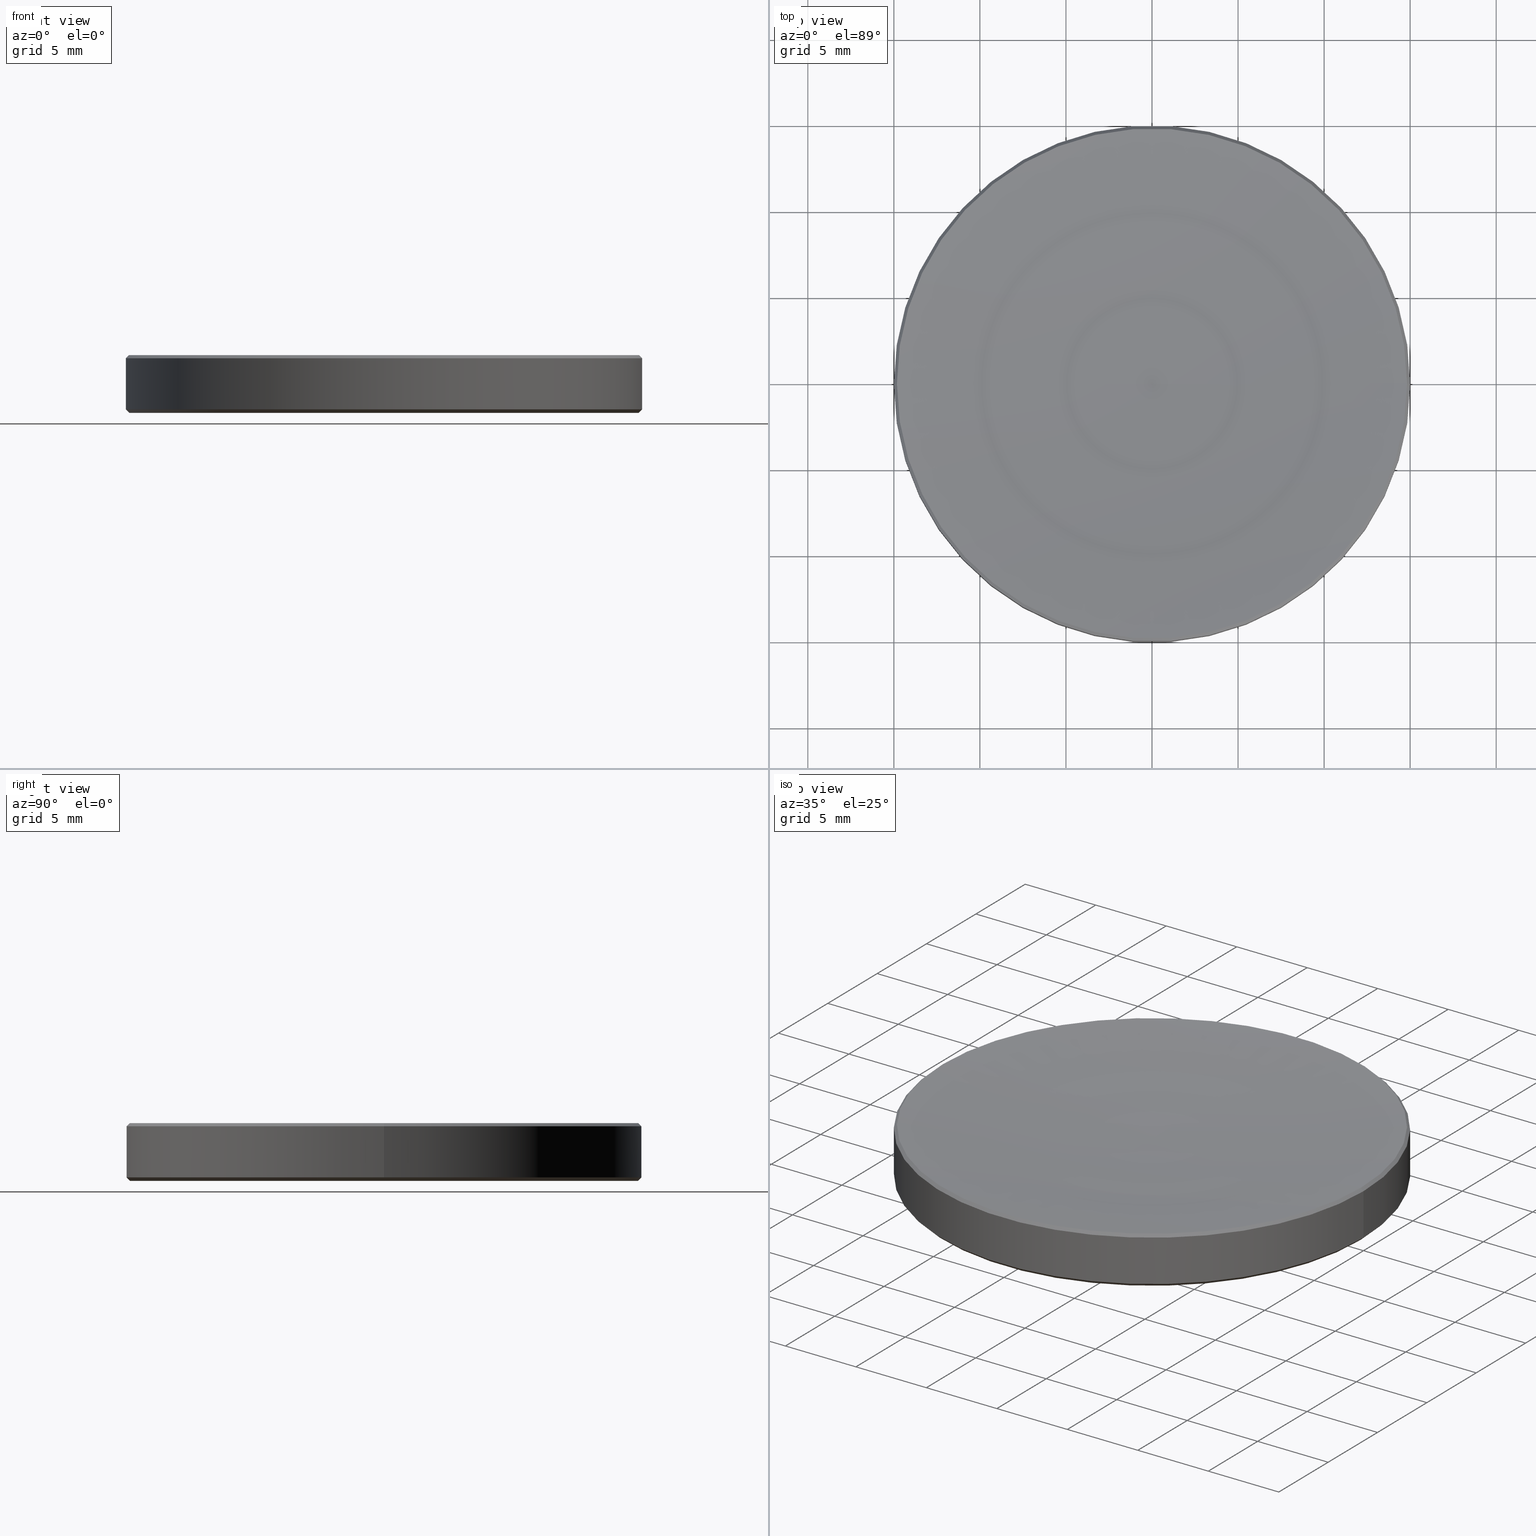
[diagram: canonical four-view strip — front | top / right | iso, engineering-drawing reading convention]
A machine part, canonical four-view strip (front | top / right | iso — engineering-drawing reading convention). The complete STEP part file that produces these views, byte-faithful:
ISO-10303-21;
HEADER;
FILE_DESCRIPTION (( 'STEP AP214' ),
    '1' );
FILE_NAME ('GL13-030-250.STEP',
    '2022-10-25T13:50:00',
    ( '' ),
    ( '' ),
    'SwSTEP 2.0',
    'SolidWorks 2022',
    '' );
FILE_SCHEMA (( 'AUTOMOTIVE_DESIGN' ));
ENDSEC;

DATA;
#1 = EDGE_CURVE ( 'NONE', #127, #71, #107, .T. ) ;
#2 = FACE_OUTER_BOUND ( 'NONE', #28, .T. ) ;
#3 = EDGE_CURVE ( 'NONE', #71, #212, #89, .T. ) ;
#4 = DIRECTION ( 'NONE',  ( 1.000000000000000000, 0.000000000000000000, 0.000000000000000000 ) ) ;
#5 = PRODUCT_CONTEXT ( 'NONE', #254, 'mechanical' ) ;
#6 = ORIENTED_EDGE ( 'NONE', *, *, #203, .T. ) ;
#7 = VECTOR ( 'NONE', #16, 1000.000000000000000 ) ;
#8 = AXIS2_PLACEMENT_3D ( 'NONE', #202, #140, #247 ) ;
#9 = EDGE_LOOP ( 'NONE', ( #216, #170, #211, #82 ) ) ;
#10 = APPLICATION_PROTOCOL_DEFINITION ( 'draft international standard', 'automotive_design', 1998, #186 ) ;
#11 = CARTESIAN_POINT ( 'NONE',  ( 0.000000000000000000, 0.000000000000000000, 2.500000000000000000 ) ) ;
#12 = CARTESIAN_POINT ( 'NONE',  ( -15.00000000000000000, 1.836970198721029589E-15, 0.1999999999999996503 ) ) ;
#13 = DIRECTION ( 'NONE',  ( 1.000000000000000000, 0.000000000000000000, 0.000000000000000000 ) ) ;
#14 = EDGE_CURVE ( 'NONE', #212, #30, #233, .T. ) ;
#15 = FACE_OUTER_BOUND ( 'NONE', #180, .T. ) ;
#16 = DIRECTION ( 'NONE',  ( -0.000000000000000000, -0.000000000000000000, 1.000000000000000000 ) ) ;
#17 = CONICAL_SURFACE ( 'NONE', #160, 15.00000000000000000, 0.7853981633974482790 ) ;
#18 = CARTESIAN_POINT ( 'NONE',  ( 14.82077471085186993, 1.815021431052878250E-15, 3.349225289148161089 ) ) ;
#19 = LINE ( 'NONE', #39, #262 ) ;
#20 = CARTESIAN_POINT ( 'NONE',  ( 0.000000000000000000, 0.000000000000000000, 3.349225289148161089 ) ) ;
#21 = AXIS2_PLACEMENT_3D ( 'NONE', #48, #192, #187 ) ;
#22 = DIRECTION ( 'NONE',  ( 0.000000000000000000, 0.000000000000000000, -1.000000000000000000 ) ) ;
#23 = PRODUCT_DEFINITION ( 'δ֪', '', #257, #57 ) ;
#24 = DIRECTION ( 'NONE',  ( 0.000000000000000000, -0.000000000000000000, 1.000000000000000000 ) ) ;
#25 = AXIS2_PLACEMENT_3D ( 'NONE', #94, #134, #198 ) ;
#26 = AXIS2_PLACEMENT_3D ( 'NONE', #206, #63, #98 ) ;
#27 = EDGE_CURVE ( 'NONE', #33, #106, #215, .T. ) ;
#28 = EDGE_LOOP ( 'NONE', ( #143, #46, #105, #232 ) ) ;
#29 = EDGE_LOOP ( 'NONE', ( #165, #6, #45 ) ) ;
#30 = VERTEX_POINT ( 'NONE', #129 ) ;
#31 = AXIS2_PLACEMENT_3D ( 'NONE', #250, #164, #188 ) ;
#32 = DIRECTION ( 'NONE',  ( 0.000000000000000000, -1.000000000000000000, 0.000000000000000000 ) ) ;
#33 = VERTEX_POINT ( 'NONE', #11 ) ;
#34 = CARTESIAN_POINT ( 'NONE',  ( 0.000000000000000000, 0.000000000000000000, 3.170000000000006146 ) ) ;
#35 = FACE_OUTER_BOUND ( 'NONE', #9, .T. ) ;
#36 = DIRECTION ( 'NONE',  ( 1.000000000000000000, 0.000000000000000000, 0.000000000000000000 ) ) ;
#37 = AXIS2_PLACEMENT_3D ( 'NONE', #256, #238, #74 ) ;
#38 = FACE_OUTER_BOUND ( 'NONE', #168, .T. ) ;
#39 = CARTESIAN_POINT ( 'NONE',  ( 15.00000000000000000, 0.000000000000000000, 2.500000000000000000 ) ) ;
#40 = CARTESIAN_POINT ( 'NONE',  ( 0.000000000000000000, 0.000000000000000000, 9.184850993605147944E-16 ) ) ;
#41 = EDGE_CURVE ( 'NONE', #146, #106, #166, .T. ) ;
#42 = MECHANICAL_DESIGN_GEOMETRIC_PRESENTATION_REPRESENTATION (  '', ( #191 ), #200 ) ;
#43 = PRESENTATION_STYLE_ASSIGNMENT (( #120 ) ) ;
#44 = FILL_AREA_STYLE ('',( #231 ) ) ;
#45 = ORIENTED_EDGE ( 'NONE', *, *, #41, .T. ) ;
#46 = ORIENTED_EDGE ( 'NONE', *, *, #14, .T. ) ;
#47 = ORIENTED_EDGE ( 'NONE', *, *, #49, .F. ) ;
#48 = CARTESIAN_POINT ( 'NONE',  ( 0.000000000000000000, 0.000000000000000000, 9.184850993605147944E-16 ) ) ;
#49 = EDGE_CURVE ( 'NONE', #106, #146, #115, .T. ) ;
#50 = DIRECTION ( 'NONE',  ( 1.000000000000000000, 0.000000000000000000, 0.000000000000000000 ) ) ;
#51 = AXIS2_PLACEMENT_3D ( 'NONE', #34, #219, #220 ) ;
#52 = AXIS2_PLACEMENT_3D ( 'NONE', #101, #22, #245 ) ;
#53 = CARTESIAN_POINT ( 'NONE',  ( 0.000000000000000000, 0.000000000000000000, 3.349225289148161089 ) ) ;
#54 = STYLED_ITEM ( 'NONE', ( #154 ), #79 ) ;
#55 = FACE_OUTER_BOUND ( 'NONE', #29, .T. ) ;
#56 = DIRECTION ( 'NONE',  ( -0.000000000000000000, -0.000000000000000000, 1.000000000000000000 ) ) ;
#57 = PRODUCT_DEFINITION_CONTEXT ( 'detailed design', #186, 'design' ) ;
#58 = DIRECTION ( 'NONE',  ( 1.000000000000000000, 0.000000000000000000, 0.000000000000000000 ) ) ;
#59 = CONICAL_SURFACE ( 'NONE', #205, 15.00000000000000000, 0.7853981633974482790 ) ;
#60 = DIRECTION ( 'NONE',  ( 0.000000000000000000, 0.000000000000000000, -1.000000000000000000 ) ) ;
#61 = DIRECTION ( 'NONE',  ( -0.000000000000000000, -0.000000000000000000, 1.000000000000000000 ) ) ;
#62 = EDGE_CURVE ( 'NONE', #212, #171, #96, .T. ) ;
#63 = DIRECTION ( 'NONE',  ( -0.000000000000000000, -0.000000000000000000, 1.000000000000000000 ) ) ;
#64 = CARTESIAN_POINT ( 'NONE',  ( 0.000000000000000000, 0.000000000000000000, 2.500000000000000000 ) ) ;
#65 =( GEOMETRIC_REPRESENTATION_CONTEXT ( 3 ) GLOBAL_UNCERTAINTY_ASSIGNED_CONTEXT ( ( #225 ) ) GLOBAL_UNIT_ASSIGNED_CONTEXT ( ( #222, #260, #201 ) ) REPRESENTATION_CONTEXT ( 'NONE', 'WORKASPACE' ) );
#66 =( GEOMETRIC_REPRESENTATION_CONTEXT ( 3 ) GLOBAL_UNCERTAINTY_ASSIGNED_CONTEXT ( ( #175 ) ) GLOBAL_UNIT_ASSIGNED_CONTEXT ( ( #99, #248, #183 ) ) REPRESENTATION_CONTEXT ( 'NONE', 'WORKASPACE' ) );
#67 = ORIENTED_EDGE ( 'NONE', *, *, #49, .T. ) ;
#68 = ORIENTED_EDGE ( 'NONE', *, *, #117, .F. ) ;
#69 = ADVANCED_FACE ( 'NONE', ( #15 ), #112, .F. ) ;
#70 = DIRECTION ( 'NONE',  ( -0.7071067811865474617, 8.659560562354932858E-17, 0.7071067811865474617 ) ) ;
#71 = VERTEX_POINT ( 'NONE', #176 ) ;
#72 = AXIS2_PLACEMENT_3D ( 'NONE', #53, #124, #4 ) ;
#73 = CIRCLE ( 'NONE', #128, 15.00000000000000000 ) ;
#74 = DIRECTION ( 'NONE',  ( 1.000000000000000000, 0.000000000000000000, 0.000000000000000000 ) ) ;
#75 = PLANE ( 'NONE',  #184 ) ;
#76 = DIRECTION ( 'NONE',  ( -0.000000000000000000, -0.000000000000000000, 1.000000000000000000 ) ) ;
#77 = SURFACE_STYLE_FILL_AREA ( #261 ) ;
#78 = EDGE_CURVE ( 'NONE', #146, #171, #93, .T. ) ;
#79 = MANIFOLD_SOLID_BREP ( '����2', #246 ) ;
#80 = FACE_OUTER_BOUND ( 'NONE', #125, .T. ) ;
#81 = AXIS2_PLACEMENT_3D ( 'NONE', #103, #32, #193 ) ;
#82 = ORIENTED_EDGE ( 'NONE', *, *, #14, .F. ) ;
#83 = CARTESIAN_POINT ( 'NONE',  ( -15.00000000000000000, 1.836970198721029589E-15, 3.170000000000006146 ) ) ;
#84 = CYLINDRICAL_SURFACE ( 'NONE', #161, 15.00000000000000000 ) ;
#85 = AXIS2_PLACEMENT_3D ( 'NONE', #20, #226, #156 ) ;
#86 = ORIENTED_EDGE ( 'NONE', *, *, #1, .T. ) ;
#87 = EDGE_LOOP ( 'NONE', ( #47, #234, #253, #145 ) ) ;
#88 = ADVANCED_FACE ( 'NONE', ( #38 ), #59, .T. ) ;
#89 = LINE ( 'NONE', #12, #102 ) ;
#90 = ORIENTED_EDGE ( 'NONE', *, *, #41, .F. ) ;
#91 = ORIENTED_EDGE ( 'NONE', *, *, #3, .T. ) ;
#92 = SURFACE_STYLE_USAGE ( .BOTH. , #131 ) ;
#93 = LINE ( 'NONE', #223, #208 ) ;
#94 = CARTESIAN_POINT ( 'NONE',  ( 0.000000000000000000, 0.000000000000000000, 131.7399966763873351 ) ) ;
#95 = CIRCLE ( 'NONE', #51, 15.00000000000000000 ) ;
#96 = LINE ( 'NONE', #263, #7 ) ;
#97 = DIRECTION ( 'NONE',  ( 0.7071067811864962804, 8.659560562354306700E-17, -0.7071067811865988650 ) ) ;
#98 = DIRECTION ( 'NONE',  ( 1.000000000000000000, 0.000000000000000000, 0.000000000000000000 ) ) ;
#99 =( LENGTH_UNIT ( ) NAMED_UNIT ( * ) SI_UNIT ( .MILLI., .METRE. ) );
#100 = CARTESIAN_POINT ( 'NONE',  ( -15.00000000000000000, 1.836970198721029589E-15, 0.1999999999999996503 ) ) ;
#101 = CARTESIAN_POINT ( 'NONE',  ( 0.000000000000000000, 0.000000000000000000, 3.349225289148161089 ) ) ;
#102 = VECTOR ( 'NONE', #70, 1000.000000000000114 ) ;
#103 = CARTESIAN_POINT ( 'NONE',  ( 0.02931019276951590119, 0.000000000000000000, 131.7399966763873351 ) ) ;
#104 = ADVANCED_FACE ( 'NONE', ( #80 ), #114, .T. ) ;
#105 = ORIENTED_EDGE ( 'NONE', *, *, #252, .T. ) ;
#106 = VERTEX_POINT ( 'NONE', #264 ) ;
#107 = CIRCLE ( 'NONE', #21, 14.80000000000000071 ) ;
#108 = COLOUR_RGB ( '',1.000000000000000000, 1.000000000000000000, 1.000000000000000000 ) ;
#109 = ORIENTED_EDGE ( 'NONE', *, *, #172, .T. ) ;
#110 = ORIENTED_EDGE ( 'NONE', *, *, #203, .F. ) ;
#111 = CARTESIAN_POINT ( 'NONE',  ( 0.000000000000000000, 0.000000000000000000, 0.1999999999999996503 ) ) ;
#112 = TOROIDAL_SURFACE ( 'NONE', #25, 0.02931019276951590119, 129.2400000000000091 ) ;
#113 = DIRECTION ( 'NONE',  ( 0.7071067811865474617, 0.000000000000000000, 0.7071067811865474617 ) ) ;
#114 = CYLINDRICAL_SURFACE ( 'NONE', #147, 15.00000000000000000 ) ;
#115 = CIRCLE ( 'NONE', #72, 14.82077471085190723 ) ;
#116 = CARTESIAN_POINT ( 'NONE',  ( 15.00000000000000000, 0.000000000000000000, 0.1999999999999996503 ) ) ;
#117 = EDGE_CURVE ( 'NONE', #127, #30, #150, .T. ) ;
#118 = UNCERTAINTY_MEASURE_WITH_UNIT (LENGTH_MEASURE( 1.000000000000000082E-05 ), #185, 'distance_accuracy_value', 'NONE');
#119 = EDGE_CURVE ( 'NONE', #106, #126, #152, .T. ) ;
#120 = SURFACE_STYLE_USAGE ( .BOTH. , #229 ) ;
#121 = ORIENTED_EDGE ( 'NONE', *, *, #252, .F. ) ;
#122 = PRESENTATION_LAYER_ASSIGNMENT (  '', '', ( #54 ) ) ;
#123 = CONICAL_SURFACE ( 'NONE', #85, 14.82077471085186993, 0.7853981633973757814 ) ;
#124 = DIRECTION ( 'NONE',  ( -0.000000000000000000, -0.000000000000000000, 1.000000000000000000 ) ) ;
#125 = EDGE_LOOP ( 'NONE', ( #109, #158, #255, #121 ) ) ;
#126 = VERTEX_POINT ( 'NONE', #241 ) ;
#127 = VERTEX_POINT ( 'NONE', #173 ) ;
#128 = AXIS2_PLACEMENT_3D ( 'NONE', #249, #204, #159 ) ;
#129 = CARTESIAN_POINT ( 'NONE',  ( 15.00000000000000000, 0.000000000000000000, 0.1999999999999996503 ) ) ;
#130 = CARTESIAN_POINT ( 'NONE',  ( 0.000000000000000000, 0.000000000000000000, 131.7399966763873351 ) ) ;
#131 = SURFACE_SIDE_STYLE ('',( #77 ) ) ;
#132 = PRODUCT_DEFINITION_SHAPE ( 'NONE', 'NONE',  #23 ) ;
#133 = DIRECTION ( 'NONE',  ( -0.000000000000000000, -0.000000000000000000, 1.000000000000000000 ) ) ;
#134 = DIRECTION ( 'NONE',  ( -0.000000000000000000, -0.000000000000000000, 1.000000000000000000 ) ) ;
#135 = AXIS2_PLACEMENT_3D ( 'NONE', #236, #217, #50 ) ;
#136 = DIRECTION ( 'NONE',  ( 1.000000000000000000, 0.000000000000000000, 0.000000000000000000 ) ) ;
#137 = TOROIDAL_SURFACE ( 'NONE', #177, 0.02931019276951590119, 129.2400000000000091 ) ;
#138 = CIRCLE ( 'NONE', #209, 14.80000000000000071 ) ;
#139 = SURFACE_STYLE_FILL_AREA ( #44 ) ;
#140 = DIRECTION ( 'NONE',  ( 1.224646799147353207E-16, 1.000000000000000000, 0.000000000000000000 ) ) ;
#141 = ADVANCED_FACE ( 'NONE', ( #55 ), #137, .F. ) ;
#142 =( NAMED_UNIT ( * ) SI_UNIT ( $, .STERADIAN. ) SOLID_ANGLE_UNIT ( ) );
#143 = ORIENTED_EDGE ( 'NONE', *, *, #62, .F. ) ;
#144 = ORIENTED_EDGE ( 'NONE', *, *, #119, .F. ) ;
#145 = ORIENTED_EDGE ( 'NONE', *, *, #78, .F. ) ;
#146 = VERTEX_POINT ( 'NONE', #149 ) ;
#147 = AXIS2_PLACEMENT_3D ( 'NONE', #244, #76, #58 ) ;
#148 = CIRCLE ( 'NONE', #8, 129.2400000000000091 ) ;
#149 = CARTESIAN_POINT ( 'NONE',  ( -14.82077471085196940, 1.815021431052890477E-15, 3.349225289148161089 ) ) ;
#150 = LINE ( 'NONE', #116, #190 ) ;
#151 = EDGE_CURVE ( 'NONE', #126, #171, #95, .T. ) ;
#152 = LINE ( 'NONE', #18, #227 ) ;
#153 = CONICAL_SURFACE ( 'NONE', #52, 14.82077471085186993, 0.7853981633973757814 ) ;
#154 = PRESENTATION_STYLE_ASSIGNMENT (( #92 ) ) ;
#155 = CARTESIAN_POINT ( 'NONE',  ( 0.000000000000000000, 0.000000000000000000, 0.1999999999999996503 ) ) ;
#156 = DIRECTION ( 'NONE',  ( -1.000000000000000000, 0.000000000000000000, 0.000000000000000000 ) ) ;
#157 = APPLICATION_PROTOCOL_DEFINITION ( 'draft international standard', 'automotive_design', 1998, #254 ) ;
#158 = ORIENTED_EDGE ( 'NONE', *, *, #62, .T. ) ;
#159 = DIRECTION ( 'NONE',  ( -1.000000000000000000, 0.000000000000000000, 0.000000000000000000 ) ) ;
#160 = AXIS2_PLACEMENT_3D ( 'NONE', #111, #196, #13 ) ;
#161 = AXIS2_PLACEMENT_3D ( 'NONE', #64, #265, #182 ) ;
#162 = DIRECTION ( 'NONE',  ( 1.000000000000000000, 0.000000000000000000, 0.000000000000000000 ) ) ;
#163 = ADVANCED_FACE ( 'NONE', ( #35 ), #17, .T. ) ;
#164 = DIRECTION ( 'NONE',  ( 0.000000000000000000, 0.000000000000000000, 1.000000000000000000 ) ) ;
#165 = ORIENTED_EDGE ( 'NONE', *, *, #27, .F. ) ;
#166 = CIRCLE ( 'NONE', #37, 14.82077471085190723 ) ;
#167 = EDGE_LOOP ( 'NONE', ( #144, #90, #214, #251 ) ) ;
#168 = EDGE_LOOP ( 'NONE', ( #195, #91, #258, #68 ) ) ;
#169 = ADVANCED_FACE ( 'NONE', ( #259 ), #75, .F. ) ;
#170 = ORIENTED_EDGE ( 'NONE', *, *, #1, .F. ) ;
#171 = VERTEX_POINT ( 'NONE', #83 ) ;
#172 = EDGE_CURVE ( 'NONE', #30, #212, #242, .T. ) ;
#173 = CARTESIAN_POINT ( 'NONE',  ( 14.80000000000000071, 0.000000000000000000, 9.184850993605147944E-16 ) ) ;
#174 = FILL_AREA_STYLE_COLOUR ( '', #237 ) ;
#175 = UNCERTAINTY_MEASURE_WITH_UNIT (LENGTH_MEASURE( 1.000000000000000082E-05 ), #99, 'distance_accuracy_value', 'NONE');
#176 = CARTESIAN_POINT ( 'NONE',  ( -14.80000000000000071, 1.824723730729555837E-15, 9.184850993605147944E-16 ) ) ;
#177 = AXIS2_PLACEMENT_3D ( 'NONE', #130, #133, #218 ) ;
#178 = FACE_OUTER_BOUND ( 'NONE', #87, .T. ) ;
#179 = ADVANCED_BREP_SHAPE_REPRESENTATION ( 'GL13-030-250', ( #79, #31 ), #66 ) ;
#180 = EDGE_LOOP ( 'NONE', ( #110, #189, #67 ) ) ;
#181 = ADVANCED_FACE ( 'NONE', ( #266 ), #123, .T. ) ;
#182 = DIRECTION ( 'NONE',  ( 1.000000000000000000, 0.000000000000000000, 0.000000000000000000 ) ) ;
#183 =( NAMED_UNIT ( * ) SI_UNIT ( $, .STERADIAN. ) SOLID_ANGLE_UNIT ( ) );
#184 = AXIS2_PLACEMENT_3D ( 'NONE', #240, #24, #162 ) ;
#185 =( LENGTH_UNIT ( ) NAMED_UNIT ( * ) SI_UNIT ( .MILLI., .METRE. ) );
#186 = APPLICATION_CONTEXT ( 'automotive_design' ) ;
#187 = DIRECTION ( 'NONE',  ( 1.000000000000000000, 0.000000000000000000, 0.000000000000000000 ) ) ;
#188 = DIRECTION ( 'NONE',  ( 1.000000000000000000, 0.000000000000000000, 0.000000000000000000 ) ) ;
#189 = ORIENTED_EDGE ( 'NONE', *, *, #27, .T. ) ;
#190 = VECTOR ( 'NONE', #113, 1000.000000000000114 ) ;
#191 = STYLED_ITEM ( 'NONE', ( #43 ), #179 ) ;
#192 = DIRECTION ( 'NONE',  ( 0.000000000000000000, 0.000000000000000000, -1.000000000000000000 ) ) ;
#193 = DIRECTION ( 'NONE',  ( 0.000000000000000000, 0.000000000000000000, -1.000000000000000000 ) ) ;
#194 = PRODUCT ( 'GL13-030-250', 'GL13-030-250', '', ( #5 ) ) ;
#195 = ORIENTED_EDGE ( 'NONE', *, *, #243, .F. ) ;
#196 = DIRECTION ( 'NONE',  ( -0.000000000000000000, -0.000000000000000000, 1.000000000000000000 ) ) ;
#197 = MECHANICAL_DESIGN_GEOMETRIC_PRESENTATION_REPRESENTATION (  '', ( #54 ), #65 ) ;
#198 = DIRECTION ( 'NONE',  ( 1.000000000000000000, 0.000000000000000000, 0.000000000000000000 ) ) ;
#199 = PRODUCT_RELATED_PRODUCT_CATEGORY ( 'part', '', ( #194 ) ) ;
#200 =( GEOMETRIC_REPRESENTATION_CONTEXT ( 3 ) GLOBAL_UNCERTAINTY_ASSIGNED_CONTEXT ( ( #118 ) ) GLOBAL_UNIT_ASSIGNED_CONTEXT ( ( #185, #224, #142 ) ) REPRESENTATION_CONTEXT ( 'NONE', 'WORKASPACE' ) );
#201 =( NAMED_UNIT ( * ) SI_UNIT ( $, .STERADIAN. ) SOLID_ANGLE_UNIT ( ) );
#202 = CARTESIAN_POINT ( 'NONE',  ( -0.02931019276951590119, 3.589463375757954364E-18, 131.7399966763873351 ) ) ;
#203 = EDGE_CURVE ( 'NONE', #33, #146, #148, .T. ) ;
#204 = DIRECTION ( 'NONE',  ( 0.000000000000000000, 0.000000000000000000, -1.000000000000000000 ) ) ;
#205 = AXIS2_PLACEMENT_3D ( 'NONE', #155, #56, #36 ) ;
#206 = CARTESIAN_POINT ( 'NONE',  ( 0.000000000000000000, 0.000000000000000000, 0.1999999999999996503 ) ) ;
#207 = ORIENTED_EDGE ( 'NONE', *, *, #243, .T. ) ;
#208 = VECTOR ( 'NONE', #239, 1000.000000000000000 ) ;
#209 = AXIS2_PLACEMENT_3D ( 'NONE', #40, #60, #136 ) ;
#210 = SHAPE_DEFINITION_REPRESENTATION ( #132, #179 ) ;
#211 = ORIENTED_EDGE ( 'NONE', *, *, #117, .T. ) ;
#212 = VERTEX_POINT ( 'NONE', #100 ) ;
#213 = EDGE_CURVE ( 'NONE', #171, #126, #73, .T. ) ;
#214 = ORIENTED_EDGE ( 'NONE', *, *, #78, .T. ) ;
#215 = CIRCLE ( 'NONE', #81, 129.2400000000000091 ) ;
#216 = ORIENTED_EDGE ( 'NONE', *, *, #3, .F. ) ;
#217 = DIRECTION ( 'NONE',  ( -0.000000000000000000, -0.000000000000000000, 1.000000000000000000 ) ) ;
#218 = DIRECTION ( 'NONE',  ( 1.000000000000000000, 0.000000000000000000, 0.000000000000000000 ) ) ;
#219 = DIRECTION ( 'NONE',  ( 0.000000000000000000, 0.000000000000000000, -1.000000000000000000 ) ) ;
#220 = DIRECTION ( 'NONE',  ( -1.000000000000000000, 0.000000000000000000, 0.000000000000000000 ) ) ;
#221 = ADVANCED_FACE ( 'NONE', ( #2 ), #84, .T. ) ;
#222 =( LENGTH_UNIT ( ) NAMED_UNIT ( * ) SI_UNIT ( .MILLI., .METRE. ) );
#223 = CARTESIAN_POINT ( 'NONE',  ( -14.82077471085186993, 0.000000000000000000, 3.349225289148161089 ) ) ;
#224 =( NAMED_UNIT ( * ) PLANE_ANGLE_UNIT ( ) SI_UNIT ( $, .RADIAN. ) );
#225 = UNCERTAINTY_MEASURE_WITH_UNIT (LENGTH_MEASURE( 1.000000000000000082E-05 ), #222, 'distance_accuracy_value', 'NONE');
#226 = DIRECTION ( 'NONE',  ( 0.000000000000000000, 0.000000000000000000, -1.000000000000000000 ) ) ;
#227 = VECTOR ( 'NONE', #97, 1000.000000000000000 ) ;
#228 = PRESENTATION_LAYER_ASSIGNMENT (  '', '', ( #191 ) ) ;
#229 = SURFACE_SIDE_STYLE ('',( #139 ) ) ;
#230 = EDGE_LOOP ( 'NONE', ( #86, #207 ) ) ;
#231 = FILL_AREA_STYLE_COLOUR ( '', #108 ) ;
#232 = ORIENTED_EDGE ( 'NONE', *, *, #151, .T. ) ;
#233 = CIRCLE ( 'NONE', #135, 15.00000000000000000 ) ;
#234 = ORIENTED_EDGE ( 'NONE', *, *, #119, .T. ) ;
#235 = ADVANCED_FACE ( 'NONE', ( #178 ), #153, .T. ) ;
#236 = CARTESIAN_POINT ( 'NONE',  ( 0.000000000000000000, 0.000000000000000000, 0.1999999999999996503 ) ) ;
#237 = COLOUR_RGB ( '',1.000000000000000000, 1.000000000000000000, 1.000000000000000000 ) ;
#238 = DIRECTION ( 'NONE',  ( -0.000000000000000000, -0.000000000000000000, 1.000000000000000000 ) ) ;
#239 = DIRECTION ( 'NONE',  ( -0.7071067811864962804, 0.000000000000000000, -0.7071067811865988650 ) ) ;
#240 = CARTESIAN_POINT ( 'NONE',  ( 0.000000000000000000, 0.000000000000000000, 9.184850993605147944E-16 ) ) ;
#241 = CARTESIAN_POINT ( 'NONE',  ( 15.00000000000000000, 0.000000000000000000, 3.170000000000006146 ) ) ;
#242 = CIRCLE ( 'NONE', #26, 15.00000000000000000 ) ;
#243 = EDGE_CURVE ( 'NONE', #71, #127, #138, .T. ) ;
#244 = CARTESIAN_POINT ( 'NONE',  ( 0.000000000000000000, 0.000000000000000000, 2.500000000000000000 ) ) ;
#245 = DIRECTION ( 'NONE',  ( -1.000000000000000000, 0.000000000000000000, 0.000000000000000000 ) ) ;
#246 = CLOSED_SHELL ( 'NONE', ( #235, #88, #104, #141, #69, #221, #169, #163, #181 ) ) ;
#247 = DIRECTION ( 'NONE',  ( -1.000000000000000000, 1.224646799147353454E-16, 0.000000000000000000 ) ) ;
#248 =( NAMED_UNIT ( * ) PLANE_ANGLE_UNIT ( ) SI_UNIT ( $, .RADIAN. ) );
#249 = CARTESIAN_POINT ( 'NONE',  ( 0.000000000000000000, 0.000000000000000000, 3.170000000000006146 ) ) ;
#250 = CARTESIAN_POINT ( 'NONE',  ( 0.000000000000000000, 0.000000000000000000, 0.000000000000000000 ) ) ;
#251 = ORIENTED_EDGE ( 'NONE', *, *, #151, .F. ) ;
#252 = EDGE_CURVE ( 'NONE', #30, #126, #19, .T. ) ;
#253 = ORIENTED_EDGE ( 'NONE', *, *, #213, .F. ) ;
#254 = APPLICATION_CONTEXT ( 'automotive_design' ) ;
#255 = ORIENTED_EDGE ( 'NONE', *, *, #213, .T. ) ;
#256 = CARTESIAN_POINT ( 'NONE',  ( 0.000000000000000000, 0.000000000000000000, 3.349225289148161089 ) ) ;
#257 = PRODUCT_DEFINITION_FORMATION_WITH_SPECIFIED_SOURCE ( '�κ�', '', #194, .NOT_KNOWN. ) ;
#258 = ORIENTED_EDGE ( 'NONE', *, *, #172, .F. ) ;
#259 = FACE_OUTER_BOUND ( 'NONE', #230, .T. ) ;
#260 =( NAMED_UNIT ( * ) PLANE_ANGLE_UNIT ( ) SI_UNIT ( $, .RADIAN. ) );
#261 = FILL_AREA_STYLE ('',( #174 ) ) ;
#262 = VECTOR ( 'NONE', #61, 1000.000000000000000 ) ;
#263 = CARTESIAN_POINT ( 'NONE',  ( -15.00000000000000000, 1.836970198721029589E-15, 2.500000000000000000 ) ) ;
#264 = CARTESIAN_POINT ( 'NONE',  ( 14.82077471085196940, 0.000000000000000000, 3.349225289148161089 ) ) ;
#265 = DIRECTION ( 'NONE',  ( -0.000000000000000000, -0.000000000000000000, 1.000000000000000000 ) ) ;
#266 = FACE_OUTER_BOUND ( 'NONE', #167, .T. ) ;
ENDSEC;
END-ISO-10303-21;
